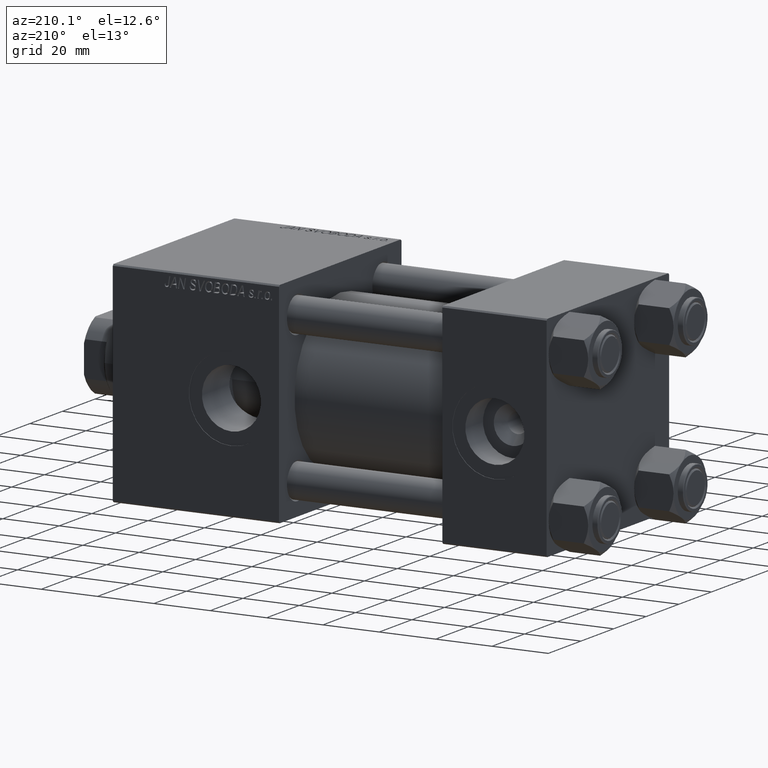
[diagram: clean part render]
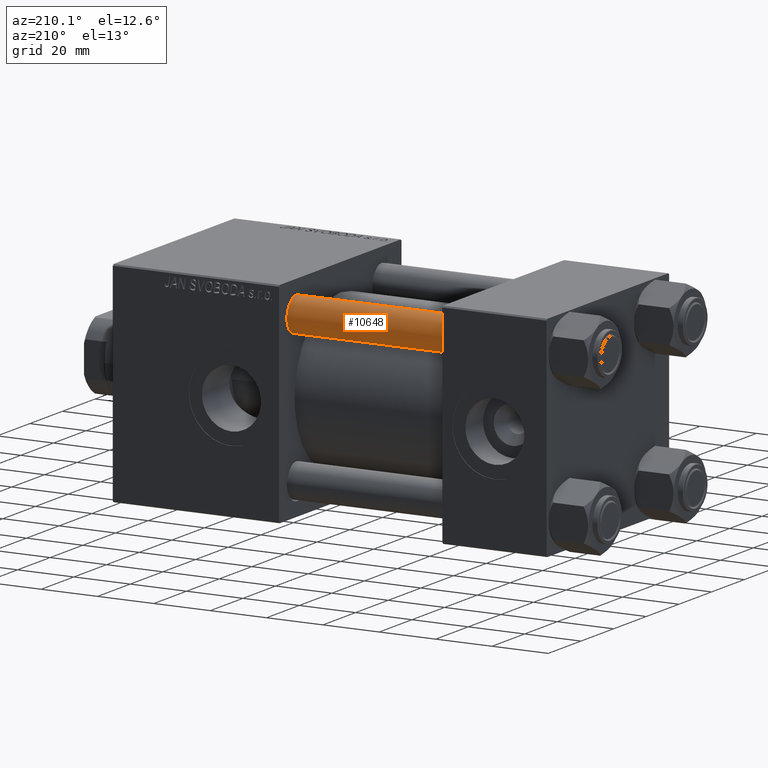
[diagram: same view with one face highlighted and labeled with its STEP entity id]
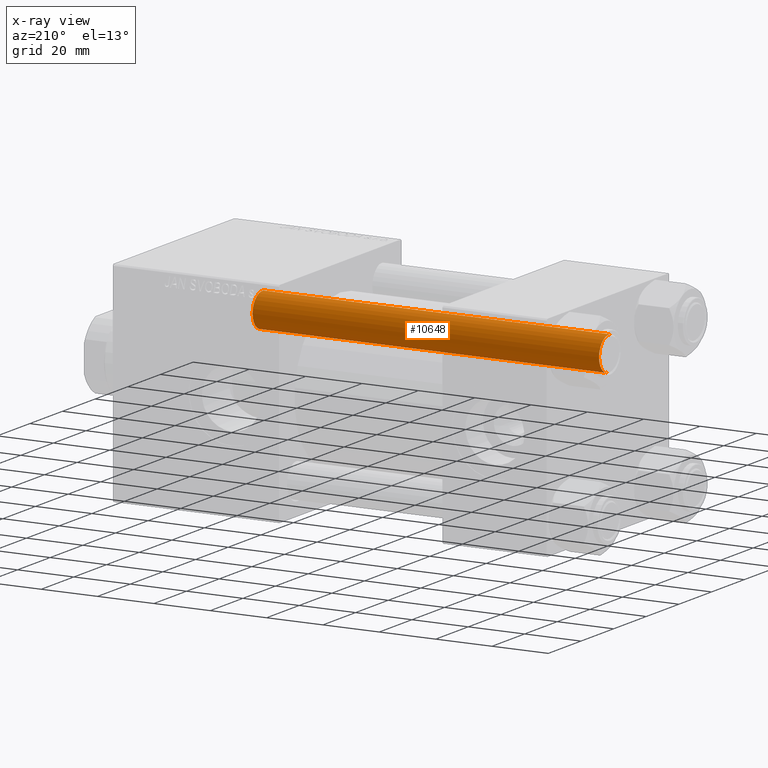
[diagram: x-ray of the same camera — body ghosted, the highlighted face saturated]
A machine part, auxiliary view. The second image highlights one B-rep face of the part: STEP entity #10648.
The next image is the same camera in x-ray: the body ghosted, the highlighted face saturated — about 0% of this face is hidden behind the body in this view.
In plain terms, the highlighted cylindrical surface (edge-blend (fillet) strip) has radius 6 mm, axis along (-1, 0, 0).
Its self-contained STEP definition (entity closure, byte-faithful):
#609 = CARTESIAN_POINT ( 'NONE',  ( 6.000000000000000888, 7.347880794884120722E-16, 124.0000000000000000 ) ) ;
#1029 = DIRECTION ( 'NONE',  ( 0.000000000000000000, 0.000000000000000000, -1.000000000000000000 ) ) ;
#5482 = DIRECTION ( 'NONE',  ( 1.000000000000000000, 0.000000000000000000, 0.000000000000000000 ) ) ;
#7104 = CARTESIAN_POINT ( 'NONE',  ( 6.000000000000000888, 7.347880794884120722E-16, 123.5000000000000426 ) ) ;
#10282 = ORIENTED_EDGE ( 'NONE', *, *, #25309, .T. ) ;
#10648 = ADVANCED_FACE ( 'NONE', ( #46566 ), #50523, .T. ) ;
#11937 = ORIENTED_EDGE ( 'NONE', *, *, #28120, .T. ) ;
#12713 = DIRECTION ( 'NONE',  ( -0.000000000000000000, -0.000000000000000000, -1.000000000000000000 ) ) ;
#13316 = AXIS2_PLACEMENT_3D ( 'NONE', #38948, #18950, #31044 ) ;
#14222 = EDGE_CURVE ( 'NONE', #38756, #27200, #15897, .T. ) ;
#15897 = LINE ( 'NONE', #44283, #26038 ) ;
#16656 = DIRECTION ( 'NONE',  ( -0.000000000000000000, -0.000000000000000000, -1.000000000000000000 ) ) ;
#17857 = EDGE_LOOP ( 'NONE', ( #11937, #10282, #43325, #37732 ) ) ;
#18950 = DIRECTION ( 'NONE',  ( -0.000000000000000000, -0.000000000000000000, -1.000000000000000000 ) ) ;
#23789 = VERTEX_POINT ( 'NONE', #7104 ) ;
#24033 = LINE ( 'NONE', #609, #37662 ) ;
#25309 = EDGE_CURVE ( 'NONE', #23789, #40343, #24033, .T. ) ;
#25535 = EDGE_CURVE ( 'NONE', #40343, #27200, #39318, .T. ) ;
#26038 = VECTOR ( 'NONE', #12713, 1000.000000000000000 ) ;
#27200 = VERTEX_POINT ( 'NONE', #46458 ) ;
#27680 = CARTESIAN_POINT ( 'NONE',  ( 0.000000000000000000, 0.000000000000000000, 0.4999999999999865663 ) ) ;
#27908 = CARTESIAN_POINT ( 'NONE',  ( -6.000000000000000888, 0.000000000000000000, 123.5000000000000426 ) ) ;
#28120 = EDGE_CURVE ( 'NONE', #38756, #23789, #47811, .T. ) ;
#31044 = DIRECTION ( 'NONE',  ( -1.000000000000000000, 0.000000000000000000, 0.000000000000000000 ) ) ;
#31849 = AXIS2_PLACEMENT_3D ( 'NONE', #49687, #1029, #5482 ) ;
#34056 = CARTESIAN_POINT ( 'NONE',  ( 6.000000000000000888, 7.347880794884120722E-16, 0.4999999999999865663 ) ) ;
#34533 = DIRECTION ( 'NONE',  ( -0.000000000000000000, -0.000000000000000000, 1.000000000000000000 ) ) ;
#35314 = DIRECTION ( 'NONE',  ( 1.000000000000000000, 0.000000000000000000, 0.000000000000000000 ) ) ;
#37662 = VECTOR ( 'NONE', #16656, 1000.000000000000000 ) ;
#37732 = ORIENTED_EDGE ( 'NONE', *, *, #14222, .F. ) ;
#38756 = VERTEX_POINT ( 'NONE', #27908 ) ;
#38948 = CARTESIAN_POINT ( 'NONE',  ( 0.000000000000000000, 0.000000000000000000, 124.0000000000000000 ) ) ;
#39318 = CIRCLE ( 'NONE', #43522, 6.000000000000000888 ) ;
#40343 = VERTEX_POINT ( 'NONE', #34056 ) ;
#43325 = ORIENTED_EDGE ( 'NONE', *, *, #25535, .T. ) ;
#43522 = AXIS2_PLACEMENT_3D ( 'NONE', #27680, #34533, #35314 ) ;
#44283 = CARTESIAN_POINT ( 'NONE',  ( -6.000000000000000888, 0.000000000000000000, 124.0000000000000000 ) ) ;
#46458 = CARTESIAN_POINT ( 'NONE',  ( -6.000000000000000888, 0.000000000000000000, 0.4999999999999865663 ) ) ;
#46566 = FACE_OUTER_BOUND ( 'NONE', #17857, .T. ) ;
#47811 = CIRCLE ( 'NONE', #31849, 6.000000000000000888 ) ;
#49687 = CARTESIAN_POINT ( 'NONE',  ( 0.000000000000000000, 0.000000000000000000, 123.5000000000000426 ) ) ;
#50523 = CYLINDRICAL_SURFACE ( 'NONE', #13316, 6.000000000000000888 ) ;